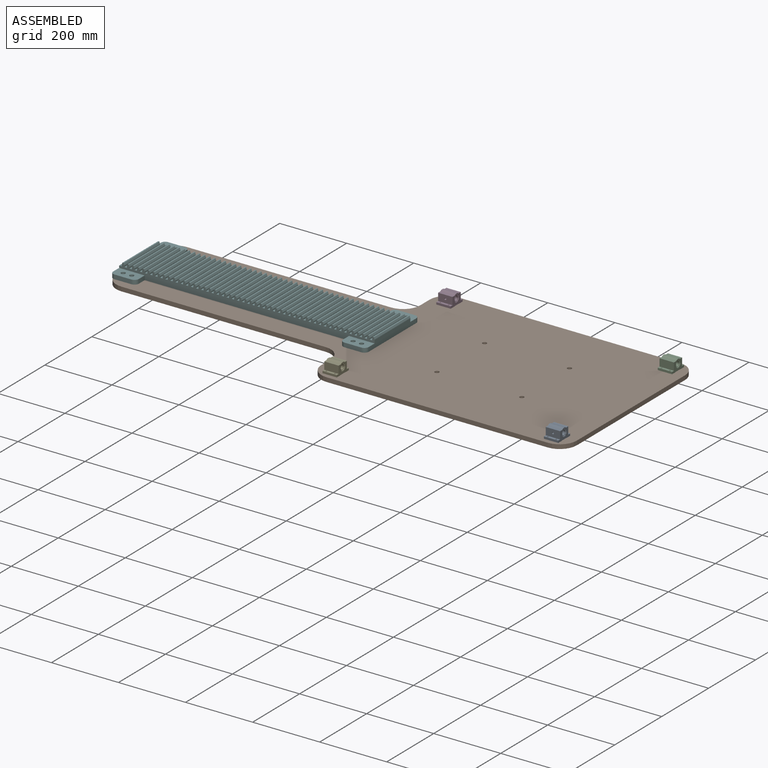
[diagram: assembled view]
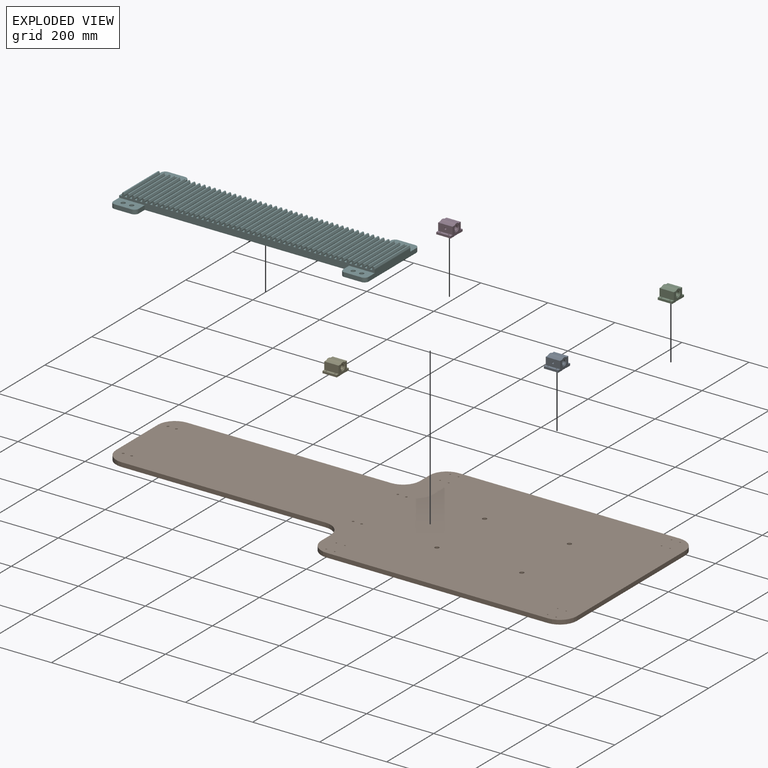
[diagram: exploded view]
GUIDED TOUR — MATED ASSEMBLY (Onshape document 529169e92f64153c733b8e30, AutoMate assembly 529169e92f64153c733b8e30_39c6d6c668530949ad70a255_f9c285f907397268ab07fada_default)

This assembly has 6 components, labeled P0..P5 below (a component is one placed occurrence of a part; the same part can appear more than once), held together by 5 mates. A mate is a constraint between two components; its type names the relative motion it leaves free:
  FASTENED — locks the two components together rigidly (no relative motion).
Axis/direction vectors are unit vectors and 'through' points are millimeter coordinates, both in the assembly's world frame.

MATES
  1. FASTENED "Fastened 2": P3 <-> P1, direction (0.000, 0.000, -1.000) through (443.78, 386.84, -166.92) mm
  2. FASTENED "Fastened 1": P2 <-> P1, direction (0.000, 0.000, -1.000) through (1104.18, 386.84, -166.92) mm
  3. FASTENED "Fastened 4": P0 <-> P1, direction (0.000, 0.000, -1.000) through (1078.78, -98.10, -166.92) mm
  4. FASTENED "Fastened 5": P5 <-> P1, direction (0.000, 0.000, -1.000) through (-305.52, 218.19, -166.92) mm
  5. FASTENED "Fastened 3": P4 <-> P1, direction (0.000, 0.000, -1.000) through (443.78, -140.96, -166.92) mm

ASSEMBLY ORDER
  1. P4 — the base component [order verified]
  2. P3 [order verified]
  3. P2 [order verified]
  4. P0 [order verified]
  5. P5 [order verified]
  6. P1 [order verified]
Order-tag legend:
  [order verified] — this step's position reverses a verified removal order: the component was checked to insert without passing through the ones already placed.

Of the 6 components, 2 carry the full construction recipe — the FeatureScript program that regenerates the part's solid from scratch; the rest are supplied as boundary geometry only.
Each toured component is shown spotlighted twice — in the assembled view, then in the exploded view, where a leader line traces a displaced component back to its assembled socket (saturated green if recipe-attached, orange if geometry-only; every other component desaturated gray) — followed by its recipe or geometry summary and the mates that hold it.
NOTE — document 3 of 3 of this assembly tour. The two overview renders and the header above are repeated from document 1; the component sections below continue where the previous document stopped.
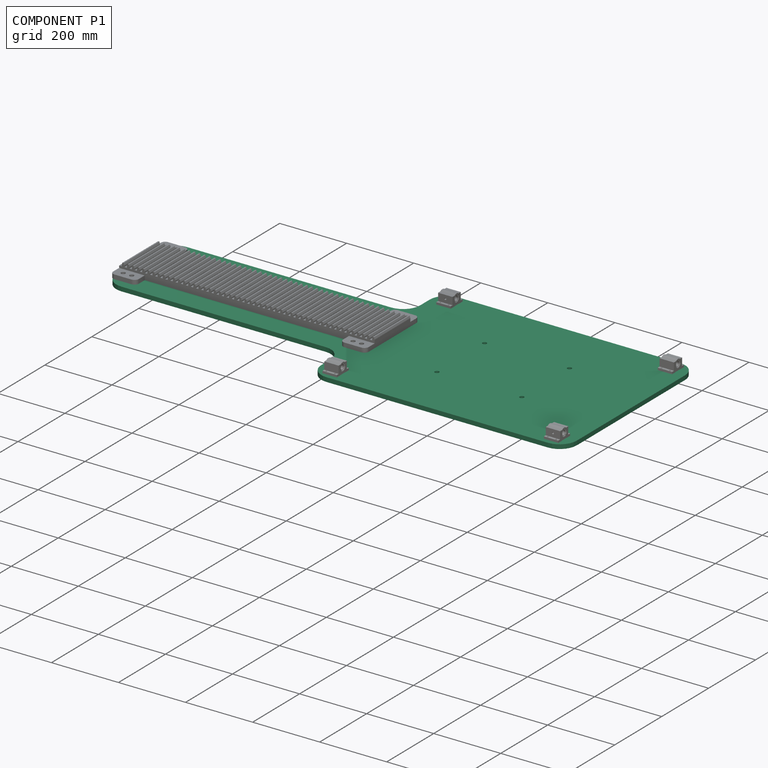
[diagram: component P1 — assembled]
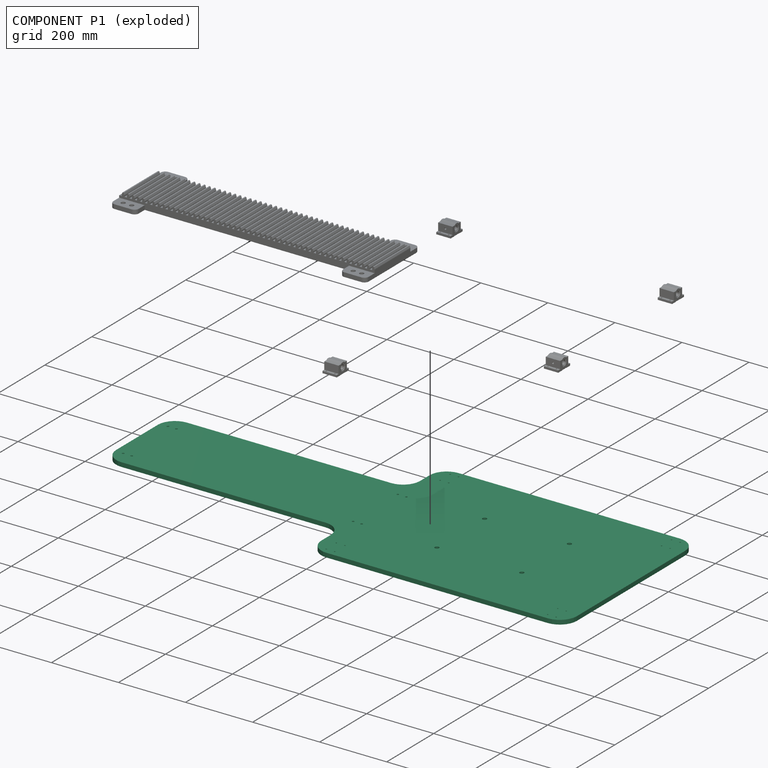
[diagram: component P1 — exploded]
COMPONENT P1 — recipe-attached (CADFS 00270995, mesh-verified: the recipe's output STEP matches this component's geometry to below the mesh-comparison resolution (tessellation chordal tolerance ~2.37 mm)).
Held by: FASTENED mate "Fastened 2" to P3; FASTENED mate "Fastened 1" to P2; FASTENED mate "Fastened 4" to P0; FASTENED mate "Fastened 5" to P5; FASTENED mate "Fastened 3" to P4.
Construction recipe (FeatureScript — the CAD program that rebuilds this solid; sketch coordinates are in the units given by the * unit suffixes, e.g. mm):

FeatureScript 1511;
import(path : "onshape/std/geometry.fs", version : "1511.0");
import(path : "onshape/std/common.fs", version : "1511.0");
const mm = millimeter;
const VERTEX = EntityType.VERTEX;
const EDGE = EntityType.EDGE;
const FACE = EntityType.FACE;
const BODY = EntityType.BODY;
function v(x, y){return vector(x, y);}
function OD(order){return orderDisambiguation(order);}
function OSD(set){return originalSetDisambiguation(set);}
function TD(topology){return topologyDisambiguation(topology);}
function TDD(query){return trueDependencyDisambiguation(query);}
function sQuery(a, b, c) {return sketchEntityQuery(a, b, c);}

annotation { "Feature Type Name" : "Feature", "Feature Type Description" : "" }
export const myFeature = defineFeature(function(context is Context, id is Id, definition is map)
    precondition{}
    {
        {
            var Q0;
            Q0=qCreatedBy(makeId("Top.planeOp"),FACE);
            var sketch = newSketch(context, id + "F0", { "sketchPlane" : qUnion([Q0])});
            skLineSegment(sketch, "E0", {"start": v(0, 0) * mm, "end": v(1473.2, 0) * mm, "construction": true});
            skLineSegment(sketch, "E1", {"start": v(1473.2, 0) * mm, "end": v(1473.2, 230.58) * mm});
            skLineSegment(sketch, "E2", {"start": v(1422.4, 281.38) * mm, "end": v(762, 281.38) * mm});
            skLineSegment(sketch, "E3", {"start": v(711.2, 230.58) * mm, "end": v(711.2, 190.5) * mm});
            skLineSegment(sketch, "E4", {"start": v(660.4, 139.7) * mm, "end": v(50.8, 139.7) * mm});
            skLineSegment(sketch, "E5", {"start": v(0, 88.9) * mm, "end": v(0, 0) * mm});
            skPoint(sketch, "E6.visualSharp", {"position": v(0, 139.7) * mm});
            skArc(sketch, "E6.filletArc", {"start": v(50.8, 139.7) * mm, "mid": v(14.88, 124.82) * mm, "end": v(0, 88.9) * mm});
            skPoint(sketch, "E7.visualSharp", {"position": v(711.2, 281.38) * mm});
            skArc(sketch, "E7.filletArc", {"start": v(762, 281.38) * mm, "mid": v(726.08, 266.5) * mm, "end": v(711.2, 230.58) * mm});
            skPoint(sketch, "E8.visualSharp", {"position": v(711.2, 139.7) * mm});
            skArc(sketch, "E8.filletArc", {"start": v(660.4, 139.7) * mm, "mid": v(696.32, 154.58) * mm, "end": v(711.2, 190.5) * mm});
            skPoint(sketch, "E9.visualSharp", {"position": v(1473.2, 281.38) * mm});
            skArc(sketch, "E9.filletArc", {"start": v(1473.2, 230.58) * mm, "mid": v(1458.32, 266.5) * mm, "end": v(1422.4, 281.38) * mm});
            skPoint(sketch, "E10.MirrorP", {"position": v(711.2, -139.7) * mm});
            skPoint(sketch, "E11.MirrorP", {"position": v(711.2, -281.38) * mm});
            skLineSegment(sketch, "E12.MirrorCS", {"start": v(1473.2, 0) * mm, "end": v(1473.2, -230.58) * mm});
            skLineSegment(sketch, "E13.MirrorCS", {"start": v(1422.4, -281.38) * mm, "end": v(762, -281.38) * mm});
            skPoint(sketch, "E14.MirrorP", {"position": v(0, -139.7) * mm});
            skLineSegment(sketch, "E15.MirrorCS", {"start": v(711.2, -230.58) * mm, "end": v(711.2, -190.5) * mm});
            skPoint(sketch, "E16.MirrorP", {"position": v(1473.2, -281.38) * mm});
            skArc(sketch, "E17.MirrorCS", {"start": v(1473.2, -230.58) * mm, "mid": v(1458.32, -266.5) * mm, "end": v(1422.4, -281.38) * mm});
            skLineSegment(sketch, "E18.MirrorCS", {"start": v(0, -88.9) * mm, "end": v(0, 0) * mm});
            skArc(sketch, "E19.MirrorCS", {"start": v(660.4, -139.7) * mm, "mid": v(696.32, -154.58) * mm, "end": v(711.2, -190.5) * mm});
            skLineSegment(sketch, "E20.MirrorCS", {"start": v(660.4, -139.7) * mm, "end": v(50.8, -139.7) * mm});
            skArc(sketch, "E21.MirrorCS", {"start": v(50.8, -139.7) * mm, "mid": v(14.88, -124.82) * mm, "end": v(0, -88.9) * mm});
            skArc(sketch, "E22.MirrorCS", {"start": v(762, -281.38) * mm, "mid": v(726.08, -266.5) * mm, "end": v(711.2, -230.58) * mm});
            skPoint(sketch, "E23", {"position": v(1473.2, 244.48) * mm});
            skLineSegment(sketch, "E24", {"start": v(1473.2, 244.48) * mm, "end": v(1246.97, 244.48) * mm, "construction": true});
            skSolve(sketch);
        }
        {
            var Q0;
            Q0=makeQuery(id+"F0.imprint","IMPRINT",FACE,{"disambiguationData":[TD([[makeQuery(id+"F0.imprint","IMPRINT",EDGE,{"derivedFrom":sQuery(id+"F0.wireOp",EDGE,"E1")}),1.0]])]});
            extrude(context, id + "F1", {"entities" : qUnion([Q0]), "depth" : 12.7 * mm});
        }
        {
            var Q0;
            Q0=makeQuery(id+"F1.opExtrude","CAP_FACE",FACE,{"disambiguationData":[OSD([sQuery(id+"F0.wireOp",EDGE,"E1"),sQuery(id+"F0.wireOp",EDGE,"E2"),sQuery(id+"F0.wireOp",EDGE,"E3"),sQuery(id+"F0.wireOp",EDGE,"E4"),sQuery(id+"F0.wireOp",EDGE,"E5"),sQuery(id+"F0.wireOp",EDGE,"E6.filletArc"),sQuery(id+"F0.wireOp",EDGE,"E7.filletArc"),sQuery(id+"F0.wireOp",EDGE,"E8.filletArc"),sQuery(id+"F0.wireOp",EDGE,"E9.filletArc"),sQuery(id+"F0.wireOp",EDGE,"E12.MirrorCS"),sQuery(id+"F0.wireOp",EDGE,"E13.MirrorCS"),sQuery(id+"F0.wireOp",EDGE,"E15.MirrorCS"),sQuery(id+"F0.wireOp",EDGE,"E17.MirrorCS"),sQuery(id+"F0.wireOp",EDGE,"E18.MirrorCS"),sQuery(id+"F0.wireOp",EDGE,"E19.MirrorCS"),sQuery(id+"F0.wireOp",EDGE,"E20.MirrorCS"),sQuery(id+"F0.wireOp",EDGE,"E21.MirrorCS"),sQuery(id+"F0.wireOp",EDGE,"E22.MirrorCS")])],"isStart":false});
            var sketch = newSketch(context, id + "F2", { "sketchPlane" : qUnion([Q0])});
            skPoint(sketch, "E25", {"position": v(1422.4, -242.47) * mm});
            skLineSegment(sketch, "E26", {"start": v(1400.97, -242.47) * mm, "end": v(1485.34, -242.47) * mm, "construction": true});
            skLineSegment(sketch, "E27", {"start": v(1422.4, -204.1) * mm, "end": v(1422.4, -307.94) * mm, "construction": true});
            skLineSegment(sketch, "E28", {"start": v(1400.97, -217.07) * mm, "end": v(1443.83, -217.07) * mm, "construction": true});
            skLineSegment(sketch, "E29", {"start": v(1400.97, -267.87) * mm, "end": v(1443.83, -267.87) * mm, "construction": true});
            skPoint(sketch, "E30", {"position": v(1435.1, -263.9) * mm});
            skPoint(sketch, "E31.MirrorP", {"position": v(1435.1, -221.04) * mm});
            skPoint(sketch, "E32.MirrorP", {"position": v(1409.7, -221.04) * mm});
            skPoint(sketch, "E33.MirrorP", {"position": v(1409.7, -263.9) * mm});
            skLineSegment(sketch, "E34", {"start": v(1092.2, 339.37) * mm, "end": v(1092.2, -479.33) * mm, "construction": true});
            skLineSegment(sketch, "E35", {"start": v(1473.2, 0) * mm, "end": v(0, 0) * mm, "construction": true});
            skPoint(sketch, "E36.MirrorP", {"position": v(1409.7, 221.04) * mm});
            skPoint(sketch, "E37.MirrorP", {"position": v(1435.1, 221.04) * mm});
            skPoint(sketch, "E38.MirrorP", {"position": v(1435.1, 263.9) * mm});
            skPoint(sketch, "E39.MirrorP", {"position": v(1409.7, 263.9) * mm});
            skPoint(sketch, "E40.MirrorP", {"position": v(774.7, 263.9) * mm});
            skPoint(sketch, "E41.MirrorP", {"position": v(749.3, 263.9) * mm});
            skPoint(sketch, "E42.MirrorP", {"position": v(749.3, 221.04) * mm});
            skPoint(sketch, "E43.MirrorP", {"position": v(774.7, 221.04) * mm});
            skPoint(sketch, "E44.MirrorP", {"position": v(774.7, -221.04) * mm});
            skPoint(sketch, "E45.MirrorP", {"position": v(749.3, -221.04) * mm});
            skPoint(sketch, "E46.MirrorP", {"position": v(749.3, -263.9) * mm});
            skPoint(sketch, "E47.MirrorP", {"position": v(774.7, -263.9) * mm});
            skPoint(sketch, "E48", {"position": v(1218.72, 101.6) * mm});
            skPoint(sketch, "E49.MirrorP", {"position": v(965.68, 101.6) * mm});
            skPoint(sketch, "E50.MirrorP", {"position": v(1218.72, -101.6) * mm});
            skPoint(sketch, "E51.MirrorP", {"position": v(965.68, -101.6) * mm});
            skPoint(sketch, "E52", {"position": v(25.4, 95.25) * mm});
            skPoint(sketch, "E53", {"position": v(50.8, 95.25) * mm});
            skPoint(sketch, "E54.MirrorP", {"position": v(25.4, -95.25) * mm});
            skPoint(sketch, "E55.MirrorP", {"position": v(50.8, -95.25) * mm});
            skLineSegment(sketch, "E56", {"start": v(381, 211.87) * mm, "end": v(381, -230.79) * mm, "construction": true});
            skPoint(sketch, "E57.MirrorP", {"position": v(711.2, 95.25) * mm});
            skPoint(sketch, "E58.MirrorP", {"position": v(736.6, 95.25) * mm});
            skPoint(sketch, "E59.MirrorP", {"position": v(736.6, -95.25) * mm});
            skPoint(sketch, "E60.MirrorP", {"position": v(711.2, -95.25) * mm});
            skSolve(sketch);
        }
        {
            var Q0;
            Q0=sQuery(id+"F2.wireOp",VERTEX,"E41.MirrorP");
            var Q1;
            Q1=sQuery(id+"F2.wireOp",VERTEX,"E40.MirrorP");
            var Q2;
            Q2=sQuery(id+"F2.wireOp",VERTEX,"E43.MirrorP");
            var Q3;
            Q3=sQuery(id+"F2.wireOp",VERTEX,"E42.MirrorP");
            var Q4;
            Q4=sQuery(id+"F2.wireOp",VERTEX,"E45.MirrorP");
            var Q5;
            Q5=sQuery(id+"F2.wireOp",VERTEX,"E44.MirrorP");
            var Q6;
            Q6=sQuery(id+"F2.wireOp",VERTEX,"E47.MirrorP");
            var Q7;
            Q7=sQuery(id+"F2.wireOp",VERTEX,"E46.MirrorP");
            var Q8;
            Q8=sQuery(id+"F2.wireOp",VERTEX,"E32.MirrorP");
            var Q9;
            Q9=sQuery(id+"F2.wireOp",VERTEX,"E31.MirrorP");
            var Q10;
            Q10=sQuery(id+"F2.wireOp",VERTEX,"E30");
            var Q11;
            Q11=sQuery(id+"F2.wireOp",VERTEX,"E33.MirrorP");
            var Q12;
            Q12=sQuery(id+"F2.wireOp",VERTEX,"E37.MirrorP");
            var Q13;
            Q13=sQuery(id+"F2.wireOp",VERTEX,"E36.MirrorP");
            var Q14;
            Q14=sQuery(id+"F2.wireOp",VERTEX,"E39.MirrorP");
            var Q15;
            Q15=sQuery(id+"F2.wireOp",VERTEX,"E38.MirrorP");
            var Q16;
            Q16=makeQuery(id+"F1.opExtrude","SWEPT_BODY",BODY,{"disambiguationData":[OSD([sQuery(id+"F0.wireOp",EDGE,"E1"),sQuery(id+"F0.wireOp",EDGE,"E2"),sQuery(id+"F0.wireOp",EDGE,"E3"),sQuery(id+"F0.wireOp",EDGE,"E4"),sQuery(id+"F0.wireOp",EDGE,"E5"),sQuery(id+"F0.wireOp",EDGE,"E6.filletArc"),sQuery(id+"F0.wireOp",EDGE,"E7.filletArc"),sQuery(id+"F0.wireOp",EDGE,"E8.filletArc"),sQuery(id+"F0.wireOp",EDGE,"E9.filletArc"),sQuery(id+"F0.wireOp",EDGE,"E12.MirrorCS"),sQuery(id+"F0.wireOp",EDGE,"E13.MirrorCS"),sQuery(id+"F0.wireOp",EDGE,"E15.MirrorCS"),sQuery(id+"F0.wireOp",EDGE,"E17.MirrorCS"),sQuery(id+"F0.wireOp",EDGE,"E18.MirrorCS"),sQuery(id+"F0.wireOp",EDGE,"E19.MirrorCS"),sQuery(id+"F0.wireOp",EDGE,"E20.MirrorCS"),sQuery(id+"F0.wireOp",EDGE,"E21.MirrorCS"),sQuery(id+"F0.wireOp",EDGE,"E22.MirrorCS")])]});
            hole(context, id + "F3", {"style" : HoleStyle.SIMPLE, "endStyle" : HoleEndStyle.THROUGH, "holeDiameter" : 3.97 * mm, "tappedDepth" : 12.7 * mm, "tapClearance" : 3, "locations" : qUnion([Q0, Q1, Q2, Q3, Q4, Q5, Q6, Q7, Q8, Q9, Q10, Q11, Q12, Q13, Q14, Q15]), "scope" : qUnion([Q16])});
        }
        {
            var Q0;
            Q0=sQuery(id+"F2.wireOp",VERTEX,"E49.MirrorP");
            var Q1;
            Q1=sQuery(id+"F2.wireOp",VERTEX,"E48");
            var Q2;
            Q2=sQuery(id+"F2.wireOp",VERTEX,"E50.MirrorP");
            var Q3;
            Q3=sQuery(id+"F2.wireOp",VERTEX,"E51.MirrorP");
            var Q4;
            Q4=makeQuery(id+"F1.opExtrude","SWEPT_BODY",BODY,{"disambiguationData":[OSD([sQuery(id+"F0.wireOp",EDGE,"E1"),sQuery(id+"F0.wireOp",EDGE,"E2"),sQuery(id+"F0.wireOp",EDGE,"E3"),sQuery(id+"F0.wireOp",EDGE,"E4"),sQuery(id+"F0.wireOp",EDGE,"E5"),sQuery(id+"F0.wireOp",EDGE,"E6.filletArc"),sQuery(id+"F0.wireOp",EDGE,"E7.filletArc"),sQuery(id+"F0.wireOp",EDGE,"E8.filletArc"),sQuery(id+"F0.wireOp",EDGE,"E9.filletArc"),sQuery(id+"F0.wireOp",EDGE,"E12.MirrorCS"),sQuery(id+"F0.wireOp",EDGE,"E13.MirrorCS"),sQuery(id+"F0.wireOp",EDGE,"E15.MirrorCS"),sQuery(id+"F0.wireOp",EDGE,"E17.MirrorCS"),sQuery(id+"F0.wireOp",EDGE,"E18.MirrorCS"),sQuery(id+"F0.wireOp",EDGE,"E19.MirrorCS"),sQuery(id+"F0.wireOp",EDGE,"E20.MirrorCS"),sQuery(id+"F0.wireOp",EDGE,"E21.MirrorCS"),sQuery(id+"F0.wireOp",EDGE,"E22.MirrorCS")])]});
            hole(context, id + "F4", {"style" : HoleStyle.SIMPLE, "endStyle" : HoleEndStyle.THROUGH, "holeDiameter" : 12.7 * mm, "tappedDepth" : 12.7 * mm, "tapClearance" : 3, "locations" : qUnion([Q0, Q1, Q2, Q3]), "scope" : qUnion([Q4])});
        }
        {
            var Q0;
            Q0=sQuery(id+"F2.wireOp",VERTEX,"E52");
            var Q1;
            Q1=sQuery(id+"F2.wireOp",VERTEX,"E53");
            var Q2;
            Q2=sQuery(id+"F2.wireOp",VERTEX,"E55.MirrorP");
            var Q3;
            Q3=sQuery(id+"F2.wireOp",VERTEX,"E54.MirrorP");
            var Q4;
            Q4=sQuery(id+"F2.wireOp",VERTEX,"E57.MirrorP");
            var Q5;
            Q5=sQuery(id+"F2.wireOp",VERTEX,"E58.MirrorP");
            var Q6;
            Q6=sQuery(id+"F2.wireOp",VERTEX,"E59.MirrorP");
            var Q7;
            Q7=sQuery(id+"F2.wireOp",VERTEX,"E60.MirrorP");
            var Q8;
            Q8=makeQuery(id+"F1.opExtrude","SWEPT_BODY",BODY,{"disambiguationData":[OSD([sQuery(id+"F0.wireOp",EDGE,"E1"),sQuery(id+"F0.wireOp",EDGE,"E2"),sQuery(id+"F0.wireOp",EDGE,"E3"),sQuery(id+"F0.wireOp",EDGE,"E4"),sQuery(id+"F0.wireOp",EDGE,"E5"),sQuery(id+"F0.wireOp",EDGE,"E6.filletArc"),sQuery(id+"F0.wireOp",EDGE,"E7.filletArc"),sQuery(id+"F0.wireOp",EDGE,"E8.filletArc"),sQuery(id+"F0.wireOp",EDGE,"E9.filletArc"),sQuery(id+"F0.wireOp",EDGE,"E12.MirrorCS"),sQuery(id+"F0.wireOp",EDGE,"E13.MirrorCS"),sQuery(id+"F0.wireOp",EDGE,"E15.MirrorCS"),sQuery(id+"F0.wireOp",EDGE,"E17.MirrorCS"),sQuery(id+"F0.wireOp",EDGE,"E18.MirrorCS"),sQuery(id+"F0.wireOp",EDGE,"E19.MirrorCS"),sQuery(id+"F0.wireOp",EDGE,"E20.MirrorCS"),sQuery(id+"F0.wireOp",EDGE,"E21.MirrorCS"),sQuery(id+"F0.wireOp",EDGE,"E22.MirrorCS")])]});
            hole(context, id + "F5", {"style" : HoleStyle.SIMPLE, "endStyle" : HoleEndStyle.THROUGH, "holeDiameter" : 6.35 * mm, "tappedDepth" : 12.7 * mm, "tapClearance" : 3, "locations" : qUnion([Q0, Q1, Q2, Q3, Q4, Q5, Q6, Q7]), "scope" : qUnion([Q8])});
        }
    });
PROVENANCE & LICENSES
Assembly (occurrences, transforms, mates, per-part STEP geometry): AutoMate dataset, Zenodo record 7776208, CC0.
Construction recipes: CADFS (HuggingFace VladPyatov/CADFS, CC-BY-4.0, layered over the ABC dataset), FeatureScript reconstruction programs keyed by ABC model id.
Join: ABC meta listings map ABC model id -> Onshape documentId; within a shared document, parts are matched by geometric signature (bounding-box dims + volume at 0.1% relative tolerance, exact B-rep face/solid counts).
Verification: 2 of this assembly's 6 components carry a recipe attachment, and every attachment is mesh-verified: the CADFS STEP and the AutoMate member STEP were compared as meshes in their shared local frame (symmetric sampled-point-to-mesh distance); worst across the 2 attachments: below the mesh-comparison resolution (tessellation chordal tolerance ~2.37 mm) on a 1577 mm part.
Renders: orthographic iso camera (az 35 / el 25); the floor grid conveys scale (grid pitch printed in each image; no ruler). In the exploded view each component is displaced by its stored offset vector: the offsets alone carry the explosion direction (mate normal/axis signs are not orientation cues and do not encode it), and separation distances are assigned per mate-chain, not proportionally to assembly-order depth.
